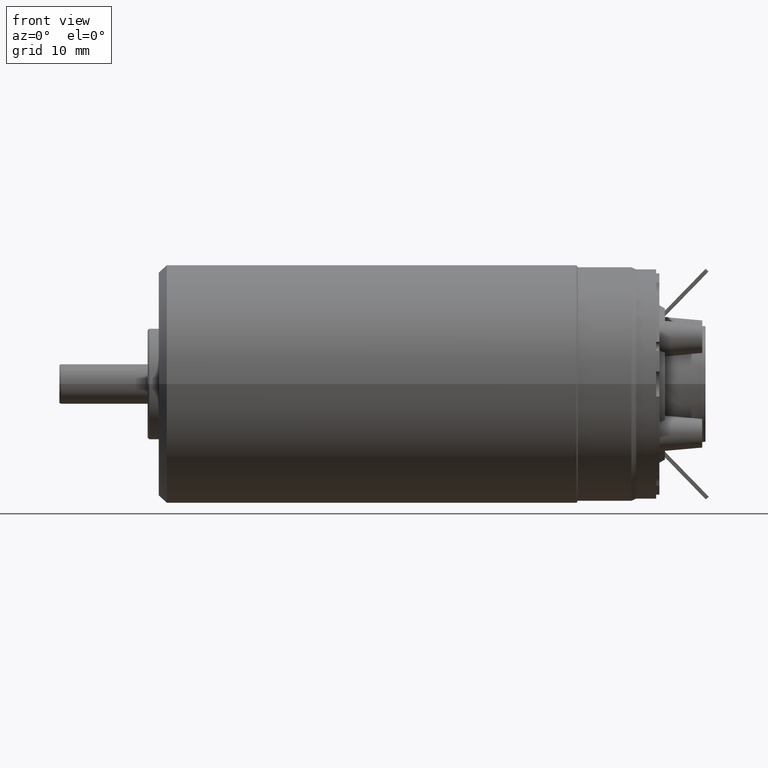
[diagram: clean part render]
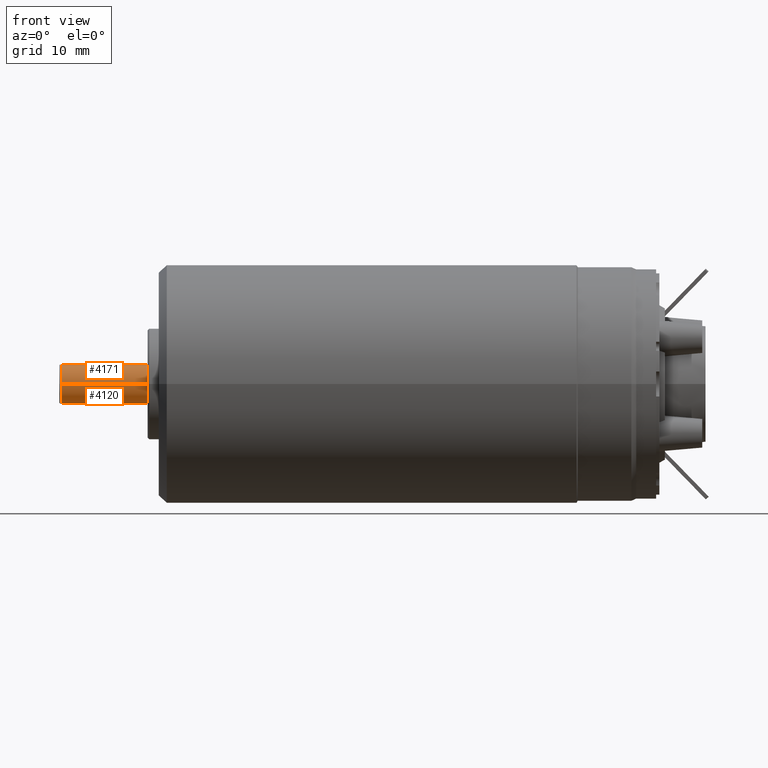
[diagram: same view with one multi-face feature highlighted, each face labeled with its STEP entity id]
A machine part, front view. The highlighted faces form ONE feature: a constant-radius fillet chain: 2 tangent blend faces with common blend radius 2.5 mm. The faces share edges in the B-rep.
Their STEP definitions:
[1] entity #4120 (Cylinder):
#1263=CARTESIAN_POINT('',(-5.54E1,0.E0,0.E0));
#1264=DIRECTION('',(1.E0,0.E0,0.E0));
#1265=DIRECTION('',(0.E0,-1.E0,0.E0));
#1266=AXIS2_PLACEMENT_3D('',#1263,#1264,#1265);
#1283=CARTESIAN_POINT('',(-6.625E1,0.E0,0.E0));
#1284=DIRECTION('',(1.E0,0.E0,0.E0));
#1285=DIRECTION('',(0.E0,-1.E0,0.E0));
#1286=AXIS2_PLACEMENT_3D('',#1283,#1284,#1285);
#1311=DIRECTION('',(1.E0,0.E0,0.E0));
#1312=VECTOR('',#1311,1.085E1);
#1313=CARTESIAN_POINT('',(-6.625E1,2.5E0,0.E0));
#1314=LINE('',#1313,#1312);
#1315=DIRECTION('',(1.E0,0.E0,0.E0));
#1316=VECTOR('',#1315,1.085E1);
#1317=CARTESIAN_POINT('',(-6.625E1,-2.5E0,0.E0));
#1318=LINE('',#1317,#1316);
#2490=CARTESIAN_POINT('',(-5.54E1,-2.5E0,0.E0));
#2491=CARTESIAN_POINT('',(-5.54E1,2.5E0,0.E0));
#2492=VERTEX_POINT('',#2490);
#2493=VERTEX_POINT('',#2491);
#2510=CARTESIAN_POINT('',(-6.625E1,-2.5E0,0.E0));
#2511=CARTESIAN_POINT('',(-6.625E1,2.5E0,0.E0));
#2512=VERTEX_POINT('',#2510);
#2513=VERTEX_POINT('',#2511);
#4106=CARTESIAN_POINT('',(-6.7125E1,0.E0,0.E0));
#4107=DIRECTION('',(1.E0,0.E0,0.E0));
#4108=DIRECTION('',(0.E0,-1.E0,0.E0));
#4109=AXIS2_PLACEMENT_3D('',#4106,#4107,#4108);
#4110=CYLINDRICAL_SURFACE('',#4109,2.5E0);
#4112=ORIENTED_EDGE('',*,*,#4111,.F.);
#4114=ORIENTED_EDGE('',*,*,#4113,.T.);
#4115=ORIENTED_EDGE('',*,*,#4099,.T.);
#4117=ORIENTED_EDGE('',*,*,#4116,.F.);
#4118=EDGE_LOOP('',(#4112,#4114,#4115,#4117));
#4119=FACE_OUTER_BOUND('',#4118,.F.);
#4120=ADVANCED_FACE('',(#4119),#4110,.T.);
#1267=CIRCLE('',#1266,2.5E0);
#1287=CIRCLE('',#1286,2.5E0);
#4099=EDGE_CURVE('',#2492,#2493,#1267,.T.);
#4111=EDGE_CURVE('',#2512,#2513,#1287,.T.);
#4113=EDGE_CURVE('',#2512,#2492,#1318,.T.);
#4116=EDGE_CURVE('',#2513,#2493,#1314,.T.);
[2] entity #4171 (Cylinder):
#1268=CARTESIAN_POINT('',(-5.54E1,0.E0,0.E0));
#1269=DIRECTION('',(-1.E0,0.E0,0.E0));
#1270=DIRECTION('',(0.E0,-1.E0,0.E0));
#1271=AXIS2_PLACEMENT_3D('',#1268,#1269,#1270);
#1306=CARTESIAN_POINT('',(-6.625E1,0.E0,0.E0));
#1307=DIRECTION('',(1.E0,0.E0,0.E0));
#1308=DIRECTION('',(0.E0,1.E0,0.E0));
#1309=AXIS2_PLACEMENT_3D('',#1306,#1307,#1308);
#1311=DIRECTION('',(1.E0,0.E0,0.E0));
#1312=VECTOR('',#1311,1.085E1);
#1313=CARTESIAN_POINT('',(-6.625E1,2.5E0,0.E0));
#1314=LINE('',#1313,#1312);
#1315=DIRECTION('',(1.E0,0.E0,0.E0));
#1316=VECTOR('',#1315,1.085E1);
#1317=CARTESIAN_POINT('',(-6.625E1,-2.5E0,0.E0));
#1318=LINE('',#1317,#1316);
#2490=CARTESIAN_POINT('',(-5.54E1,-2.5E0,0.E0));
#2491=CARTESIAN_POINT('',(-5.54E1,2.5E0,0.E0));
#2492=VERTEX_POINT('',#2490);
#2493=VERTEX_POINT('',#2491);
#2510=CARTESIAN_POINT('',(-6.625E1,-2.5E0,0.E0));
#2511=CARTESIAN_POINT('',(-6.625E1,2.5E0,0.E0));
#2512=VERTEX_POINT('',#2510);
#2513=VERTEX_POINT('',#2511);
#4160=CARTESIAN_POINT('',(-6.7125E1,0.E0,0.E0));
#4161=DIRECTION('',(1.E0,0.E0,0.E0));
#4162=DIRECTION('',(0.E0,-1.E0,0.E0));
#4163=AXIS2_PLACEMENT_3D('',#4160,#4161,#4162);
#4164=CYLINDRICAL_SURFACE('',#4163,2.5E0);
#4165=ORIENTED_EDGE('',*,*,#4154,.F.);
#4166=ORIENTED_EDGE('',*,*,#4116,.T.);
#4167=ORIENTED_EDGE('',*,*,#4101,.F.);
#4168=ORIENTED_EDGE('',*,*,#4113,.F.);
#4169=EDGE_LOOP('',(#4165,#4166,#4167,#4168));
#4170=FACE_OUTER_BOUND('',#4169,.F.);
#4171=ADVANCED_FACE('',(#4170),#4164,.T.);
#1272=CIRCLE('',#1271,2.5E0);
#1310=CIRCLE('',#1309,2.5E0);
#4101=EDGE_CURVE('',#2492,#2493,#1272,.T.);
#4113=EDGE_CURVE('',#2512,#2492,#1318,.T.);
#4116=EDGE_CURVE('',#2513,#2493,#1314,.T.);
#4154=EDGE_CURVE('',#2513,#2512,#1310,.T.);